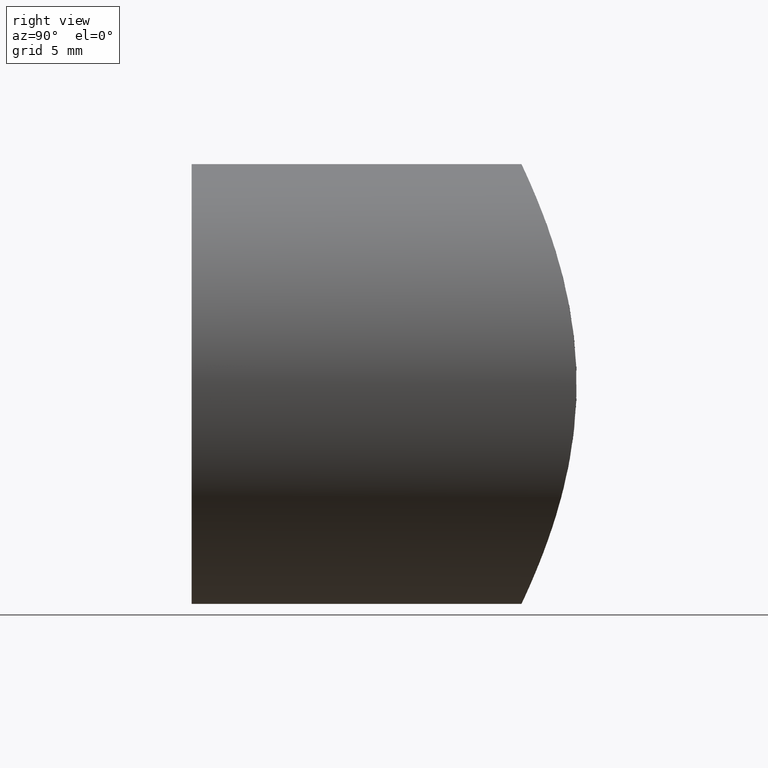
[diagram: clean part render]
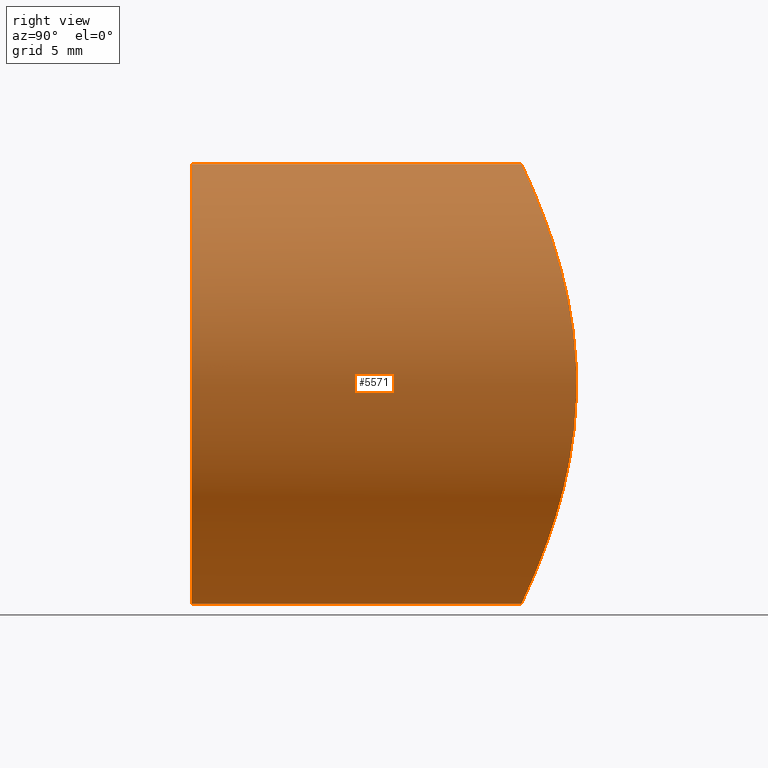
[diagram: same view with one face highlighted and labeled with its STEP entity id]
A machine part, right view. The second image highlights one B-rep face of the part: STEP entity #5571.
In plain terms, the highlighted cylindrical surface (partial cylindrical patch) has radius 10 mm, axis along (-0, -1, -0).
Its self-contained STEP definition (entity closure, byte-faithful):
#49 = DIRECTION ( 'NONE',  ( -0.0000000000000000000, -1.000000000000000000, -0.0000000000000000000 ) ) ;
#74 = CARTESIAN_POINT ( 'NONE',  ( 0.0000000000000000000, 36.20000000000000300, -10.00000000000000000 ) ) ;
#116 = DIRECTION ( 'NONE',  ( 0.0000000000000000000, 0.0000000000000000000, 1.000000000000000000 ) ) ;
#171 = DIRECTION ( 'NONE',  ( -0.0000000000000000000, -1.000000000000000000, -0.0000000000000000000 ) ) ;
#176 = CARTESIAN_POINT ( 'NONE',  ( 3.564882681608621900, 15.29961879845273700, -9.348734026158293600 ) ) ;
#331 = CARTESIAN_POINT ( 'NONE',  ( 2.619273181737872500, 15.15999510230365400, -9.656568613338885500 ) ) ;
#443 = EDGE_CURVE ( 'NONE', #9220, #6473, #7769, .T. ) ;
#452 = CARTESIAN_POINT ( 'NONE',  ( 1.319996317228848200, 15.03094129771828800, 9.934920591628078100 ) ) ;
#535 = CARTESIAN_POINT ( 'NONE',  ( 7.514639725077304700, 16.37528623459832000, 6.605725507864306700 ) ) ;
#1101 = CARTESIAN_POINT ( 'NONE',  ( 4.470787562540694500, 15.46767378741292700, -8.968886456665787300 ) ) ;
#1412 = CARTESIAN_POINT ( 'NONE',  ( 7.520628071817157000, 16.37757478132244100, -6.598805551205492400 ) ) ;
#1450 = CARTESIAN_POINT ( 'NONE',  ( 4.159735258399629200, 15.40986275997035900, 9.099587380266527200 ) ) ;
#1461 = CIRCLE ( 'NONE', #8354, 10.00000000000000000 ) ;
#1789 = VERTEX_POINT ( 'NONE', #5093 ) ;
#2008 = CARTESIAN_POINT ( 'NONE',  ( 5.851876461251867700, 15.82173056004573500, -8.115505318998211600 ) ) ;
#2203 = CARTESIAN_POINT ( 'NONE',  ( 9.983786367746001000, 17.49798363900853500, 0.6598665803628666100 ) ) ;
#2339 = CYLINDRICAL_SURFACE ( 'NONE', #11513, 10.00000000000000000 ) ;
#2356 = CARTESIAN_POINT ( 'NONE',  ( 8.125074877737928200, 16.61781892301117500, -5.838551294713068900 ) ) ;
#2913 = CARTESIAN_POINT ( 'NONE',  ( 6.114163262400973400, 15.89912874730086600, -7.919693625984873400 ) ) ;
#2942 = FACE_OUTER_BOUND ( 'NONE', #4647, .T. ) ;
#3116 = CARTESIAN_POINT ( 'NONE',  ( 6.119159843689280900, 15.89457138695086000, 7.936050530277495500 ) ) ;
#3154 = CARTESIAN_POINT ( 'NONE',  ( 9.351623365317156100, 17.17351840123544100, 3.557410587330188400 ) ) ;
#3203 = CARTESIAN_POINT ( 'NONE',  ( 7.930323009083584100, 16.53789520126933300, -6.100332635916186200 ) ) ;
#3288 = CARTESIAN_POINT ( 'NONE',  ( 1.224646799147353100E-015, 0.0000000000000000000, 10.00000000000000000 ) ) ;
#3789 = CARTESIAN_POINT ( 'NONE',  ( 0.0000000000000000000, 0.0000000000000000000, 0.0000000000000000000 ) ) ;
#3811 = CARTESIAN_POINT ( 'NONE',  ( 6.850944227835479500, 16.13603950810869100, -7.291621095102188500 ) ) ;
#4043 = CARTESIAN_POINT ( 'NONE',  ( 8.121782843819307400, 16.61645922232164800, 5.843058933521574800 ) ) ;
#4085 = CARTESIAN_POINT ( 'NONE',  ( 9.737749516231998500, 17.36859943491655000, -2.298979730444311800 ) ) ;
#4131 = CARTESIAN_POINT ( 'NONE',  ( 3.559352837399915300, 15.29870312018573100, 9.350769769915844500 ) ) ;
#4278 = LINE ( 'NONE', #74, #5415 ) ;
#4450 = CARTESIAN_POINT ( 'NONE',  ( 1.224646799147353100E-015, 36.20000000000000300, 10.00000000000000000 ) ) ;
#4595 = ORIENTED_EDGE ( 'NONE', *, *, #443, .T. ) ;
#4647 = EDGE_LOOP ( 'NONE', ( #9921, #4595, #5822, #6781 ) ) ;
#4736 = CARTESIAN_POINT ( 'NONE',  ( 3.253099303615301500, 15.24863386276505600, -9.461884289374426200 ) ) ;
#4766 = CARTESIAN_POINT ( 'NONE',  ( 0.0000000000000000000, 36.20000000000000300, 0.0000000000000000000 ) ) ;
#4813 = CARTESIAN_POINT ( 'NONE',  ( 0.6715000176472312200, 15.00000000000001100, -10.00000000000000400 ) ) ;
#4897 = CARTESIAN_POINT ( 'NONE',  ( 0.6619828014559345800, 15.00000000000000200, 10.00000000000000200 ) ) ;
#4988 = CARTESIAN_POINT ( 'NONE',  ( 6.615491024262429000, 16.05284098528395400, 7.526545802229871500 ) ) ;
#5028 = CARTESIAN_POINT ( 'NONE',  ( 3.252307806211661500, 15.24855256137413700, 9.462058118314161000 ) ) ;
#5093 = CARTESIAN_POINT ( 'NONE',  ( 0.0000000000000000000, 0.0000000000000000000, -10.00000000000000000 ) ) ;
#5415 = VECTOR ( 'NONE', #11710, 1000.000000000000000 ) ;
#5571 = ADVANCED_FACE ( 'NONE', ( #2942 ), #2339, .T. ) ;
#5783 = CARTESIAN_POINT ( 'NONE',  ( 2.299254260693633300, 15.12255376882135800, -9.737662300090569500 ) ) ;
#5822 = ORIENTED_EDGE ( 'NONE', *, *, #7878, .T. ) ;
#5823 = CARTESIAN_POINT ( 'NONE',  ( 9.999444577251219700, 17.50638856351361400, -0.6721608793019907500 ) ) ;
#5859 = CARTESIAN_POINT ( 'NONE',  ( 9.464356666739544000, 17.22955928856300600, 3.245633441166105600 ) ) ;
#5902 = CARTESIAN_POINT ( 'NONE',  ( 8.970953552040864300, 16.98954871049054900, 4.467002460431856100 ) ) ;
#5945 = CARTESIAN_POINT ( 'NONE',  ( 9.917562398799546500, 17.46278136249937800, 1.324148861188949100 ) ) ;
#6473 = VERTEX_POINT ( 'NONE', #3288 ) ;
#6479 = CARTESIAN_POINT ( 'NONE',  ( -1.035815001783296300E-015, 15.00000000000000400, -10.00000000000000500 ) ) ;
#6533 = DIRECTION ( 'NONE',  ( 0.0000000000000000000, 1.000000000000000000, 0.0000000000000000000 ) ) ;
#6737 = CARTESIAN_POINT ( 'NONE',  ( 7.927315506611408000, 16.53666470467293000, 6.104349968800717900 ) ) ;
#6781 = ORIENTED_EDGE ( 'NONE', *, *, #9146, .F. ) ;
#6817 = CARTESIAN_POINT ( 'NONE',  ( 8.667764545993943400, 16.84891507489771800, -5.029110232892597000 ) ) ;
#6859 = CARTESIAN_POINT ( 'NONE',  ( 10.00027252634969200, 17.50683147519664100, 0.3236084424597576700 ) ) ;
#6901 = CARTESIAN_POINT ( 'NONE',  ( 2.623904985373545900, 15.16061363852122300, 9.655214784168823200 ) ) ;
#7344 = DIRECTION ( 'NONE',  ( 0.0000000000000000000, 0.0000000000000000000, -1.000000000000000000 ) ) ;
#7402 = CARTESIAN_POINT ( 'NONE',  ( 1.224647930545293300E-015, 15.00000000000000500, 10.00000000000000000 ) ) ;
#7426 = CARTESIAN_POINT ( 'NONE',  ( 5.041911454663118500, 15.60066935981057800, -8.660408055346167100 ) ) ;
#7660 = CARTESIAN_POINT ( 'NONE',  ( 5.307533654428956600, 15.67321935628560700, 8.481529361503042700 ) ) ;
#7699 = CARTESIAN_POINT ( 'NONE',  ( 9.657176310925287100, 17.32698716152858200, 2.616701979472703800 ) ) ;
#7737 = CARTESIAN_POINT ( 'NONE',  ( 5.026240919635204900, 15.60234590669886900, 8.651174990311218900 ) ) ;
#7769 = LINE ( 'NONE', #4450, #8468 ) ;
#7878 = EDGE_CURVE ( 'NONE', #6473, #1789, #1461, .T. ) ;
#8354 = AXIS2_PLACEMENT_3D ( 'NONE', #3789, #6533, #116 ) ;
#8468 = VECTOR ( 'NONE', #49, 1000.000000000000000 ) ;
#8513 = CARTESIAN_POINT ( 'NONE',  ( 9.737970138201570000, 17.36871412917782100, 2.297954202194568900 ) ) ;
#8543 = EDGE_CURVE ( 'NONE', #10197, #9220, #10242, .T. ) ;
#8556 = CARTESIAN_POINT ( 'NONE',  ( 9.933452327128028600, 17.47066001166398100, -1.327711803124456600 ) ) ;
#8595 = CARTESIAN_POINT ( 'NONE',  ( 9.655561371689801200, 17.32615694780964000, -2.622817394434086200 ) ) ;
#8637 = CARTESIAN_POINT ( 'NONE',  ( 8.973681937040789000, 16.99087054011579300, -4.460395499377525200 ) ) ;
#9146 = EDGE_CURVE ( 'NONE', #10197, #1789, #4278, .T. ) ;
#9172 = CARTESIAN_POINT ( 'NONE',  ( -1.035815001783296300E-015, 15.00000000000000400, -10.00000000000000500 ) ) ;
#9201 = CARTESIAN_POINT ( 'NONE',  ( 6.612986507250179900, 16.05609830561897100, -7.508192124851778000 ) ) ;
#9220 = VERTEX_POINT ( 'NONE', #7402 ) ;
#9444 = CARTESIAN_POINT ( 'NONE',  ( 9.868161836033936000, 17.43661086213432300, 1.651677300725693500 ) ) ;
#9491 = CARTESIAN_POINT ( 'NONE',  ( 9.461502403920588800, 17.22813163597777100, -3.254075713258555200 ) ) ;
#9921 = ORIENTED_EDGE ( 'NONE', *, *, #8543, .T. ) ;
#10126 = CARTESIAN_POINT ( 'NONE',  ( 7.304765451073788700, 16.29677540854533300, -6.836927432132823100 ) ) ;
#10197 = VERTEX_POINT ( 'NONE', #6479 ) ;
#10242 = B_SPLINE_CURVE_WITH_KNOTS ( 'NONE', 3,
 ( #9172, #4813, #11003, #5783, #331, #4736, #176, #1101, #7426, #2008, #2913, #9201, #3811, #10126, #1412, #3203, #2356, #6817, #8637, #11308, #9491, #8595, #4085, #8556, #5823, #6859, #2203, #5945, #9444, #8513, #7699, #5859, #3154, #5902, #10404, #4043, #6737, #535, #10361, #4988, #3116, #7660, #7737, #10283, #1450, #4131, #5028, #6901, #11350, #452, #4897, #11222 ),
 .UNSPECIFIED., .F., .F.,
 ( 4, 2, 2, 2, 2, 2, 2, 2, 2, 2, 2, 2, 2, 2, 2, 2, 2, 2, 2, 2, 2, 2, 2, 2, 2, 4 ),
 ( 1.811534215863891100E-018, 0.001983965170021423400, 0.002975947755032134100, 0.003967930340042844300, 0.005951895510064263800, 0.006943878095074973600, 0.007935860680085685100, 0.008927843265096395800, 0.009919825850107106400, 0.01190379102012852800, 0.01289577360513923800, 0.01388775619014994900, 0.01587172136017137400, 0.01686370394518208300, 0.01785568653019279500, 0.01884766911520351100, 0.01983965170021422000, 0.02182361687023564500, 0.02281559945524635700, 0.02380758204025706200, 0.02579154721027847300, 0.02678352979528917500, 0.02777551238029988100, 0.02876749496531058300, 0.02975947755032128800, 0.03174344272034269200 ),
 .UNSPECIFIED. ) ;
#10283 = CARTESIAN_POINT ( 'NONE',  ( 4.453071463694025000, 15.47087540515196800, 8.959692016717744100 ) ) ;
#10361 = CARTESIAN_POINT ( 'NONE',  ( 7.297704964963183500, 16.29417957710762700, 6.844479932444973400 ) ) ;
#10404 = CARTESIAN_POINT ( 'NONE',  ( 8.662889897059862700, 16.84675628107751400, 5.037173382212854400 ) ) ;
#11003 = CARTESIAN_POINT ( 'NONE',  ( 1.329948976981336200, 15.03180511113889200, -9.933065217862916200 ) ) ;
#11222 = CARTESIAN_POINT ( 'NONE',  ( 1.224647930545293300E-015, 15.00000000000000500, 10.00000000000000000 ) ) ;
#11308 = CARTESIAN_POINT ( 'NONE',  ( 9.349957769969515600, 17.17271182674138100, -3.561434202578584300 ) ) ;
#11350 = CARTESIAN_POINT ( 'NONE',  ( 2.300973500818421800, 15.12268090806926100, 9.737390836789632700 ) ) ;
#11513 = AXIS2_PLACEMENT_3D ( 'NONE', #4766, #171, #7344 ) ;
#11710 = DIRECTION ( 'NONE',  ( -0.0000000000000000000, -1.000000000000000000, -0.0000000000000000000 ) ) ;